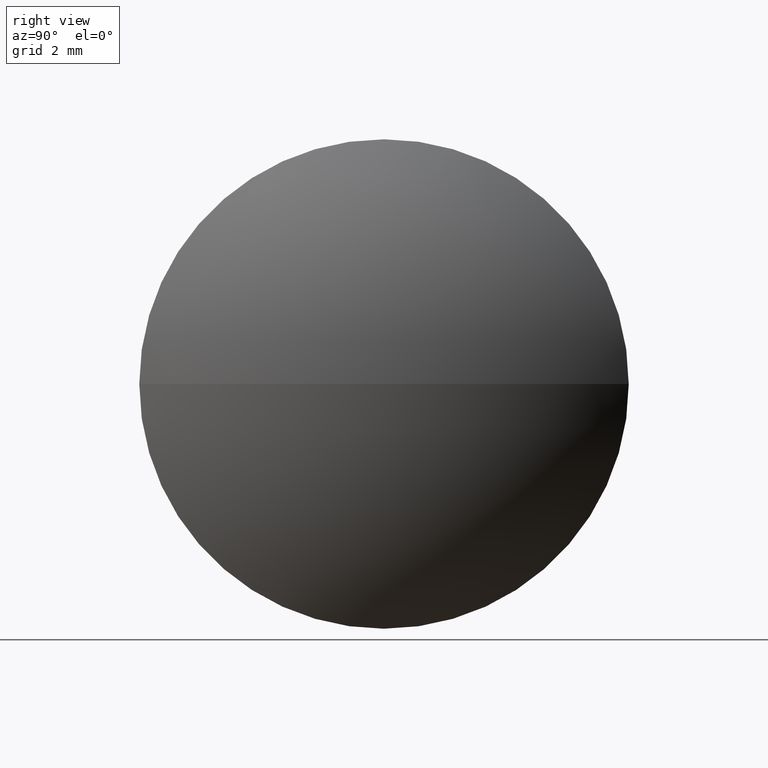
[diagram: clean part render]
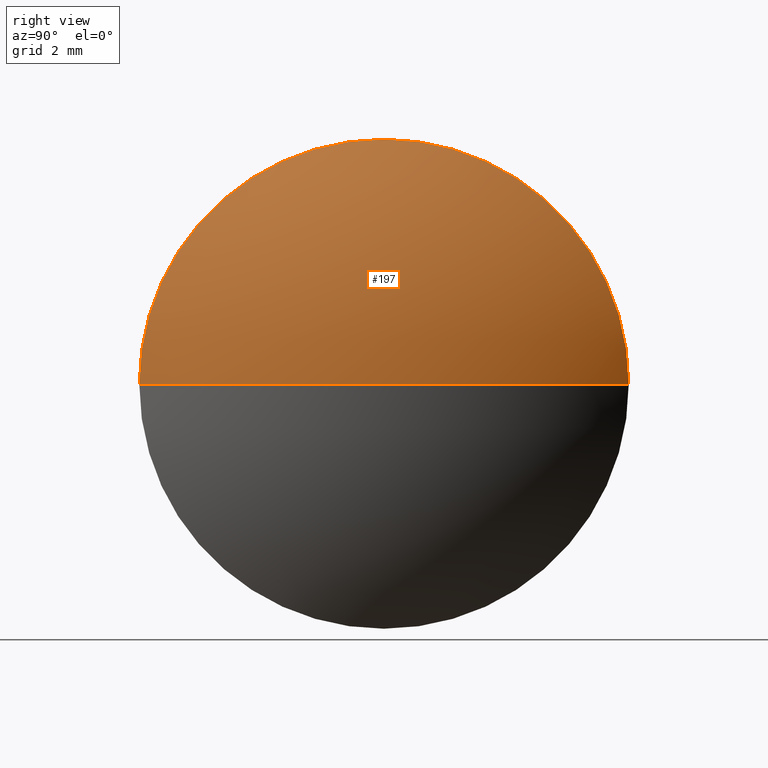
[diagram: same view with one face highlighted and labeled with its STEP entity id]
A machine part, right view. The second image highlights one B-rep face of the part: STEP entity #197.
In plain terms, the highlighted spherical surface has radius 8.34 mm.
Its self-contained STEP definition (entity closure, byte-faithful):
#2 = CARTESIAN_POINT ( 'NONE',  ( 34.78865896640257900, 24.14020197763180800, 0.0000000000000000000 ) ) ;
#4 = ORIENTED_EDGE ( 'NONE', *, *, #306, .F. ) ;
#20 = CIRCLE ( 'NONE', #138, 4.999999999999997300 ) ;
#23 = CIRCLE ( 'NONE', #46, 4.999999999999997300 ) ;
#27 = ORIENTED_EDGE ( 'NONE', *, *, #256, .F. ) ;
#31 = DIRECTION ( 'NONE',  ( -0.0000000000000000000, 0.0000000000000000000, 1.000000000000000000 ) ) ;
#33 = ORIENTED_EDGE ( 'NONE', *, *, #225, .F. ) ;
#46 = AXIS2_PLACEMENT_3D ( 'NONE', #208, #247, #293 ) ;
#60 = CARTESIAN_POINT ( 'NONE',  ( 34.78865896640257900, 19.14020197763180800, 0.0000000000000000000 ) ) ;
#61 = EDGE_LOOP ( 'NONE', ( #33, #328, #4, #27 ) ) ;
#62 = VERTEX_POINT ( 'NONE', #90 ) ;
#67 = CARTESIAN_POINT ( 'NONE',  ( 28.11365145889507000, 19.14020197763180800, 0.0000000000000000000 ) ) ;
#77 = SPHERICAL_SURFACE ( 'NONE', #239, 8.340007507507506200 ) ;
#83 = VERTEX_POINT ( 'NONE', #2 ) ;
#90 = CARTESIAN_POINT ( 'NONE',  ( 34.78865896640257900, 14.14020197763181000, -6.123233995736766300E-016 ) ) ;
#107 = VERTEX_POINT ( 'NONE', #221 ) ;
#122 = AXIS2_PLACEMENT_3D ( 'NONE', #202, #257, #304 ) ;
#124 = DIRECTION ( 'NONE',  ( 0.0000000000000000000, 1.000000000000000000, 0.0000000000000000000 ) ) ;
#125 = DIRECTION ( 'NONE',  ( -0.0000000000000000000, 0.0000000000000000000, -1.000000000000000000 ) ) ;
#138 = AXIS2_PLACEMENT_3D ( 'NONE', #60, #194, #176 ) ;
#158 = AXIS2_PLACEMENT_3D ( 'NONE', #341, #31, #291 ) ;
#170 = CIRCLE ( 'NONE', #158, 8.340007507507504400 ) ;
#176 = DIRECTION ( 'NONE',  ( 0.0000000000000000000, 0.0000000000000000000, 1.000000000000000000 ) ) ;
#193 = CARTESIAN_POINT ( 'NONE',  ( 34.78865896640257900, 19.14020197763180800, 4.999999999999997300 ) ) ;
#194 = DIRECTION ( 'NONE',  ( -1.000000000000000000, -0.0000000000000000000, -0.0000000000000000000 ) ) ;
#197 = ADVANCED_FACE ( 'NONE', ( #295 ), #77, .T. ) ;
#202 = CARTESIAN_POINT ( 'NONE',  ( 28.11365145889507000, 19.14020197763180800, 0.0000000000000000000 ) ) ;
#208 = CARTESIAN_POINT ( 'NONE',  ( 34.78865896640257900, 19.14020197763180800, 0.0000000000000000000 ) ) ;
#221 = CARTESIAN_POINT ( 'NONE',  ( 36.45365896640257800, 19.14020197763180800, 0.0000000000000000000 ) ) ;
#225 = EDGE_CURVE ( 'NONE', #107, #62, #232, .T. ) ;
#232 = CIRCLE ( 'NONE', #122, 8.340007507507508000 ) ;
#239 = AXIS2_PLACEMENT_3D ( 'NONE', #67, #125, #124 ) ;
#247 = DIRECTION ( 'NONE',  ( -1.000000000000000000, -0.0000000000000000000, -0.0000000000000000000 ) ) ;
#256 = EDGE_CURVE ( 'NONE', #62, #266, #23, .T. ) ;
#257 = DIRECTION ( 'NONE',  ( 0.0000000000000000000, 1.224646799147353200E-016, -1.000000000000000000 ) ) ;
#266 = VERTEX_POINT ( 'NONE', #193 ) ;
#291 = DIRECTION ( 'NONE',  ( 1.000000000000000000, 0.0000000000000000000, 0.0000000000000000000 ) ) ;
#293 = DIRECTION ( 'NONE',  ( 0.0000000000000000000, 0.0000000000000000000, 1.000000000000000000 ) ) ;
#295 = FACE_OUTER_BOUND ( 'NONE', #61, .T. ) ;
#304 = DIRECTION ( 'NONE',  ( 0.0000000000000000000, 1.000000000000000000, 1.224646799147353000E-016 ) ) ;
#306 = EDGE_CURVE ( 'NONE', #266, #83, #20, .T. ) ;
#328 = ORIENTED_EDGE ( 'NONE', *, *, #334, .T. ) ;
#334 = EDGE_CURVE ( 'NONE', #107, #83, #170, .T. ) ;
#341 = CARTESIAN_POINT ( 'NONE',  ( 28.11365145889507000, 19.14020197763180800, 0.0000000000000000000 ) ) ;